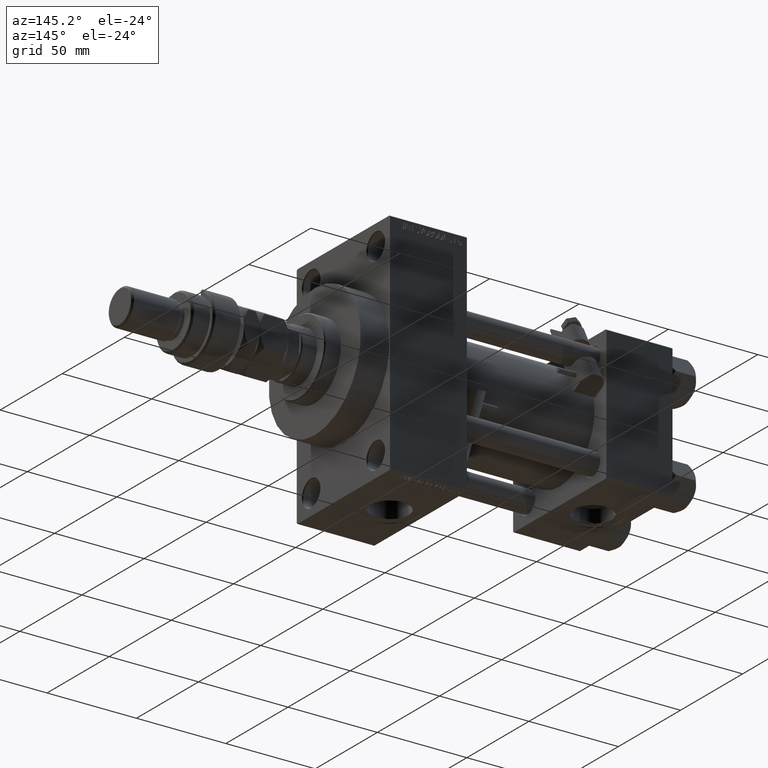
[diagram: clean part render]
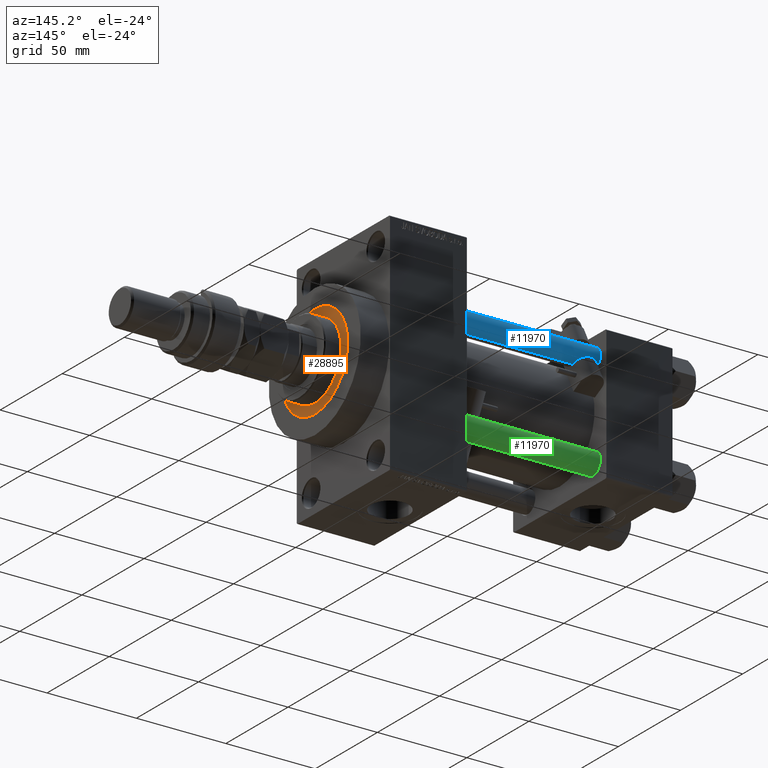
[diagram: same view with three faces highlighted in distinct colors, each labeled with its STEP entity id]
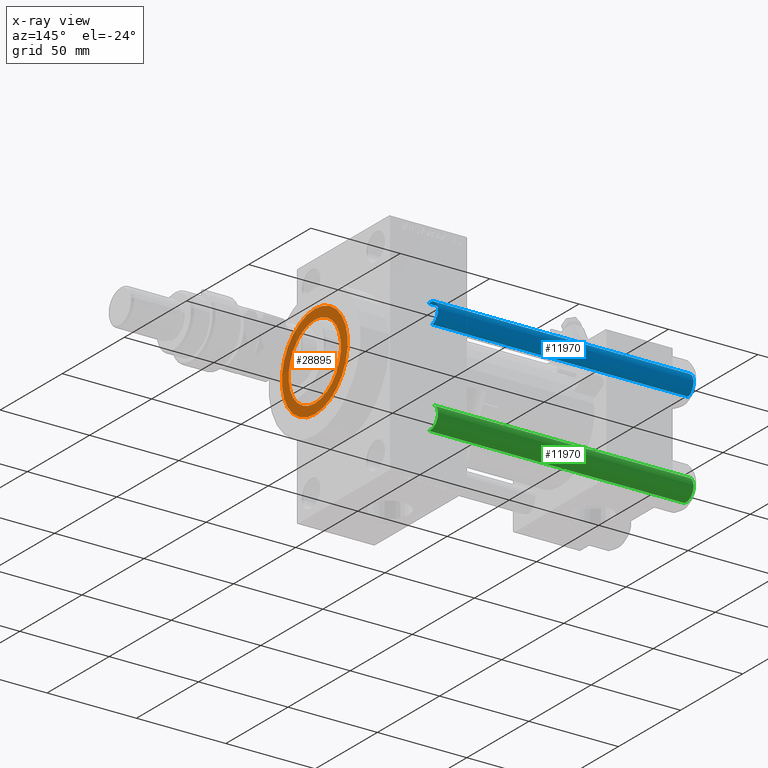
[diagram: x-ray of the same camera — body ghosted, the three highlighted faces saturated]
A machine part, auxiliary view with three faces highlighted in distinct colors.
The next image is the same camera in x-ray (body ghosted, the three faces saturated) — at least one of them is partly hidden behind the body in this view.
Their STEP definitions:

[orange] entity #28895 — the highlighted planar face has unit normal (1, -0, -0).
#120 = CARTESIAN_POINT ( 'NONE',  ( -21.00000000000000000, 0.000000000000000000, 43.25999999999999801 ) ) ;
#947 = CARTESIAN_POINT ( 'NONE',  ( 0.000000000000000000, 0.000000000000000000, 43.25999999999999801 ) ) ;
#1296 = DIRECTION ( 'NONE',  ( 0.000000000000000000, 0.000000000000000000, 1.000000000000000000 ) ) ;
#1915 = ORIENTED_EDGE ( 'NONE', *, *, #14955, .F. ) ;
#2617 = CARTESIAN_POINT ( 'NONE',  ( 0.000000000000000000, 0.000000000000000000, 43.25999999999999801 ) ) ;
#4020 = ORIENTED_EDGE ( 'NONE', *, *, #47487, .F. ) ;
#4130 = EDGE_CURVE ( 'NONE', #36731, #21057, #16265, .T. ) ;
#4688 = AXIS2_PLACEMENT_3D ( 'NONE', #38709, #30644, #27663 ) ;
#4979 = FACE_BOUND ( 'NONE', #17137, .T. ) ;
#8757 = DIRECTION ( 'NONE',  ( 0.000000000000000000, 0.000000000000000000, 1.000000000000000000 ) ) ;
#9023 = AXIS2_PLACEMENT_3D ( 'NONE', #9623, #1296, #46216 ) ;
#9279 = DIRECTION ( 'NONE',  ( 1.000000000000000000, 0.000000000000000000, -0.000000000000000000 ) ) ;
#9561 = ORIENTED_EDGE ( 'NONE', *, *, #19235, .T. ) ;
#9623 = CARTESIAN_POINT ( 'NONE',  ( 0.000000000000000000, 0.000000000000000000, 43.25999999999999801 ) ) ;
#12270 = DIRECTION ( 'NONE',  ( 1.000000000000000000, 0.000000000000000000, 0.000000000000000000 ) ) ;
#14955 = EDGE_CURVE ( 'NONE', #34265, #24019, #18324, .T. ) ;
#16032 = CARTESIAN_POINT ( 'NONE',  ( 0.000000000000000000, 0.000000000000000000, 43.25999999999999801 ) ) ;
#16265 = CIRCLE ( 'NONE', #26578, 26.50000000000000355 ) ;
#17137 = EDGE_LOOP ( 'NONE', ( #1915, #4020 ) ) ;
#18324 = CIRCLE ( 'NONE', #4688, 21.00000000000000000 ) ;
#19235 = EDGE_CURVE ( 'NONE', #21057, #36731, #36518, .T. ) ;
#21057 = VERTEX_POINT ( 'NONE', #36307 ) ;
#24019 = VERTEX_POINT ( 'NONE', #25976 ) ;
#25976 = CARTESIAN_POINT ( 'NONE',  ( 21.00000000000000000, 2.571758278209441661E-15, 43.25999999999999801 ) ) ;
#26578 = AXIS2_PLACEMENT_3D ( 'NONE', #16032, #27870, #12270 ) ;
#27116 = DIRECTION ( 'NONE',  ( 1.000000000000000000, 0.000000000000000000, 0.000000000000000000 ) ) ;
#27663 = DIRECTION ( 'NONE',  ( 1.000000000000000000, 0.000000000000000000, 0.000000000000000000 ) ) ;
#27785 = EDGE_LOOP ( 'NONE', ( #9561, #29315 ) ) ;
#27870 = DIRECTION ( 'NONE',  ( 0.000000000000000000, 0.000000000000000000, 1.000000000000000000 ) ) ;
#28895 = ADVANCED_FACE ( 'NONE', ( #4979, #29227 ), #37285, .T. ) ;
#29227 = FACE_OUTER_BOUND ( 'NONE', #27785, .T. ) ;
#29315 = ORIENTED_EDGE ( 'NONE', *, *, #4130, .T. ) ;
#30644 = DIRECTION ( 'NONE',  ( 0.000000000000000000, 0.000000000000000000, 1.000000000000000000 ) ) ;
#34265 = VERTEX_POINT ( 'NONE', #120 ) ;
#36242 = DIRECTION ( 'NONE',  ( 0.000000000000000000, 0.000000000000000000, 1.000000000000000000 ) ) ;
#36307 = CARTESIAN_POINT ( 'NONE',  ( -26.50000000000000355, 0.000000000000000000, 43.25999999999999801 ) ) ;
#36518 = CIRCLE ( 'NONE', #9023, 26.50000000000000355 ) ;
#36731 = VERTEX_POINT ( 'NONE', #44560 ) ;
#37285 = PLANE ( 'NONE',  #47374 ) ;
#38709 = CARTESIAN_POINT ( 'NONE',  ( 0.000000000000000000, 0.000000000000000000, 43.25999999999999801 ) ) ;
#43542 = AXIS2_PLACEMENT_3D ( 'NONE', #2617, #36242, #27116 ) ;
#44393 = CIRCLE ( 'NONE', #43542, 21.00000000000000000 ) ;
#44560 = CARTESIAN_POINT ( 'NONE',  ( 26.50000000000000355, 3.245314017740486554E-15, 43.25999999999999801 ) ) ;
#46216 = DIRECTION ( 'NONE',  ( 1.000000000000000000, 0.000000000000000000, 0.000000000000000000 ) ) ;
#47374 = AXIS2_PLACEMENT_3D ( 'NONE', #947, #8757, #9279 ) ;
#47487 = EDGE_CURVE ( 'NONE', #24019, #34265, #44393, .T. ) ;

[blue] entity #11970 — the highlighted cylindrical surface (edge-blend (fillet) strip) has radius 6 mm, axis along (-1, -0, 0).
#5 = EDGE_CURVE ( 'NONE', #26941, #45117, #52501, .T. ) ;
#762 = DIRECTION ( 'NONE',  ( -0.000000000000000000, -0.000000000000000000, -1.000000000000000000 ) ) ;
#849 = CARTESIAN_POINT ( 'NONE',  ( -6.000000000000000888, 0.000000000000000000, 144.0000000000000000 ) ) ;
#2407 = DIRECTION ( 'NONE',  ( 1.000000000000000000, 0.000000000000000000, 0.000000000000000000 ) ) ;
#6021 = DIRECTION ( 'NONE',  ( 1.000000000000000000, 0.000000000000000000, 0.000000000000000000 ) ) ;
#6228 = ORIENTED_EDGE ( 'NONE', *, *, #41102, .T. ) ;
#6470 = EDGE_LOOP ( 'NONE', ( #6228, #30106, #6989, #42147 ) ) ;
#6989 = ORIENTED_EDGE ( 'NONE', *, *, #39304, .T. ) ;
#7321 = VECTOR ( 'NONE', #7636, 1000.000000000000000 ) ;
#7636 = DIRECTION ( 'NONE',  ( -0.000000000000000000, -0.000000000000000000, -1.000000000000000000 ) ) ;
#8571 = CYLINDRICAL_SURFACE ( 'NONE', #22584, 6.000000000000000888 ) ;
#9016 = CIRCLE ( 'NONE', #46796, 6.000000000000000888 ) ;
#9203 = VERTEX_POINT ( 'NONE', #47924 ) ;
#9633 = CARTESIAN_POINT ( 'NONE',  ( 0.000000000000000000, 0.000000000000000000, 144.0000000000000000 ) ) ;
#11970 = ADVANCED_FACE ( 'NONE', ( #26052 ), #8571, .T. ) ;
#13592 = DIRECTION ( 'NONE',  ( -0.000000000000000000, -0.000000000000000000, 1.000000000000000000 ) ) ;
#16536 = CARTESIAN_POINT ( 'NONE',  ( 6.000000000000000888, 7.347880794884120722E-16, 144.0000000000000000 ) ) ;
#19359 = CARTESIAN_POINT ( 'NONE',  ( 0.000000000000000000, 0.000000000000000000, 143.5000000000000000 ) ) ;
#20244 = CIRCLE ( 'NONE', #50293, 6.000000000000000888 ) ;
#20305 = LINE ( 'NONE', #16536, #7321 ) ;
#20430 = EDGE_CURVE ( 'NONE', #9203, #45404, #20305, .T. ) ;
#22584 = AXIS2_PLACEMENT_3D ( 'NONE', #9633, #762, #46489 ) ;
#22924 = CARTESIAN_POINT ( 'NONE',  ( -6.000000000000000888, 0.000000000000000000, 0.5000000000000004441 ) ) ;
#26052 = FACE_OUTER_BOUND ( 'NONE', #6470, .T. ) ;
#26941 = VERTEX_POINT ( 'NONE', #33942 ) ;
#30106 = ORIENTED_EDGE ( 'NONE', *, *, #20430, .T. ) ;
#33942 = CARTESIAN_POINT ( 'NONE',  ( -6.000000000000000888, 0.000000000000000000, 143.5000000000000000 ) ) ;
#39261 = CARTESIAN_POINT ( 'NONE',  ( 6.000000000000000888, 7.347880794884120722E-16, 0.5000000000000004441 ) ) ;
#39304 = EDGE_CURVE ( 'NONE', #45404, #45117, #9016, .T. ) ;
#41102 = EDGE_CURVE ( 'NONE', #26941, #9203, #20244, .T. ) ;
#42147 = ORIENTED_EDGE ( 'NONE', *, *, #5, .F. ) ;
#42859 = CARTESIAN_POINT ( 'NONE',  ( 0.000000000000000000, 0.000000000000000000, 0.5000000000000004441 ) ) ;
#45117 = VERTEX_POINT ( 'NONE', #22924 ) ;
#45404 = VERTEX_POINT ( 'NONE', #39261 ) ;
#45435 = VECTOR ( 'NONE', #49293, 1000.000000000000000 ) ;
#46489 = DIRECTION ( 'NONE',  ( -1.000000000000000000, 0.000000000000000000, 0.000000000000000000 ) ) ;
#46796 = AXIS2_PLACEMENT_3D ( 'NONE', #42859, #13592, #6021 ) ;
#47924 = CARTESIAN_POINT ( 'NONE',  ( 6.000000000000000888, 7.347880794884120722E-16, 143.5000000000000000 ) ) ;
#49293 = DIRECTION ( 'NONE',  ( -0.000000000000000000, -0.000000000000000000, -1.000000000000000000 ) ) ;
#50293 = AXIS2_PLACEMENT_3D ( 'NONE', #19359, #52413, #2407 ) ;
#52413 = DIRECTION ( 'NONE',  ( 0.000000000000000000, 0.000000000000000000, -1.000000000000000000 ) ) ;
#52501 = LINE ( 'NONE', #849, #45435 ) ;

[green] entity #11970 — the highlighted cylindrical surface (edge-blend (fillet) strip) has radius 6 mm, axis along (1, -0, 0).
#5 = EDGE_CURVE ( 'NONE', #26941, #45117, #52501, .T. ) ;
#762 = DIRECTION ( 'NONE',  ( -0.000000000000000000, -0.000000000000000000, -1.000000000000000000 ) ) ;
#849 = CARTESIAN_POINT ( 'NONE',  ( -6.000000000000000888, 0.000000000000000000, 144.0000000000000000 ) ) ;
#2407 = DIRECTION ( 'NONE',  ( 1.000000000000000000, 0.000000000000000000, 0.000000000000000000 ) ) ;
#6021 = DIRECTION ( 'NONE',  ( 1.000000000000000000, 0.000000000000000000, 0.000000000000000000 ) ) ;
#6228 = ORIENTED_EDGE ( 'NONE', *, *, #41102, .T. ) ;
#6470 = EDGE_LOOP ( 'NONE', ( #6228, #30106, #6989, #42147 ) ) ;
#6989 = ORIENTED_EDGE ( 'NONE', *, *, #39304, .T. ) ;
#7321 = VECTOR ( 'NONE', #7636, 1000.000000000000000 ) ;
#7636 = DIRECTION ( 'NONE',  ( -0.000000000000000000, -0.000000000000000000, -1.000000000000000000 ) ) ;
#8571 = CYLINDRICAL_SURFACE ( 'NONE', #22584, 6.000000000000000888 ) ;
#9016 = CIRCLE ( 'NONE', #46796, 6.000000000000000888 ) ;
#9203 = VERTEX_POINT ( 'NONE', #47924 ) ;
#9633 = CARTESIAN_POINT ( 'NONE',  ( 0.000000000000000000, 0.000000000000000000, 144.0000000000000000 ) ) ;
#11970 = ADVANCED_FACE ( 'NONE', ( #26052 ), #8571, .T. ) ;
#13592 = DIRECTION ( 'NONE',  ( -0.000000000000000000, -0.000000000000000000, 1.000000000000000000 ) ) ;
#16536 = CARTESIAN_POINT ( 'NONE',  ( 6.000000000000000888, 7.347880794884120722E-16, 144.0000000000000000 ) ) ;
#19359 = CARTESIAN_POINT ( 'NONE',  ( 0.000000000000000000, 0.000000000000000000, 143.5000000000000000 ) ) ;
#20244 = CIRCLE ( 'NONE', #50293, 6.000000000000000888 ) ;
#20305 = LINE ( 'NONE', #16536, #7321 ) ;
#20430 = EDGE_CURVE ( 'NONE', #9203, #45404, #20305, .T. ) ;
#22584 = AXIS2_PLACEMENT_3D ( 'NONE', #9633, #762, #46489 ) ;
#22924 = CARTESIAN_POINT ( 'NONE',  ( -6.000000000000000888, 0.000000000000000000, 0.5000000000000004441 ) ) ;
#26052 = FACE_OUTER_BOUND ( 'NONE', #6470, .T. ) ;
#26941 = VERTEX_POINT ( 'NONE', #33942 ) ;
#30106 = ORIENTED_EDGE ( 'NONE', *, *, #20430, .T. ) ;
#33942 = CARTESIAN_POINT ( 'NONE',  ( -6.000000000000000888, 0.000000000000000000, 143.5000000000000000 ) ) ;
#39261 = CARTESIAN_POINT ( 'NONE',  ( 6.000000000000000888, 7.347880794884120722E-16, 0.5000000000000004441 ) ) ;
#39304 = EDGE_CURVE ( 'NONE', #45404, #45117, #9016, .T. ) ;
#41102 = EDGE_CURVE ( 'NONE', #26941, #9203, #20244, .T. ) ;
#42147 = ORIENTED_EDGE ( 'NONE', *, *, #5, .F. ) ;
#42859 = CARTESIAN_POINT ( 'NONE',  ( 0.000000000000000000, 0.000000000000000000, 0.5000000000000004441 ) ) ;
#45117 = VERTEX_POINT ( 'NONE', #22924 ) ;
#45404 = VERTEX_POINT ( 'NONE', #39261 ) ;
#45435 = VECTOR ( 'NONE', #49293, 1000.000000000000000 ) ;
#46489 = DIRECTION ( 'NONE',  ( -1.000000000000000000, 0.000000000000000000, 0.000000000000000000 ) ) ;
#46796 = AXIS2_PLACEMENT_3D ( 'NONE', #42859, #13592, #6021 ) ;
#47924 = CARTESIAN_POINT ( 'NONE',  ( 6.000000000000000888, 7.347880794884120722E-16, 143.5000000000000000 ) ) ;
#49293 = DIRECTION ( 'NONE',  ( -0.000000000000000000, -0.000000000000000000, -1.000000000000000000 ) ) ;
#50293 = AXIS2_PLACEMENT_3D ( 'NONE', #19359, #52413, #2407 ) ;
#52413 = DIRECTION ( 'NONE',  ( 0.000000000000000000, 0.000000000000000000, -1.000000000000000000 ) ) ;
#52501 = LINE ( 'NONE', #849, #45435 ) ;